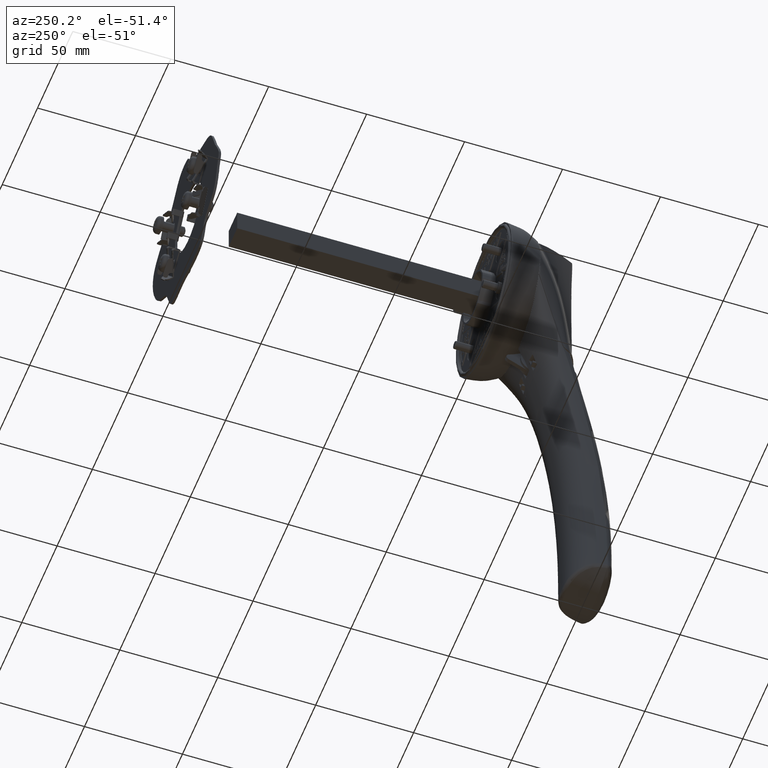
[diagram: clean part render]
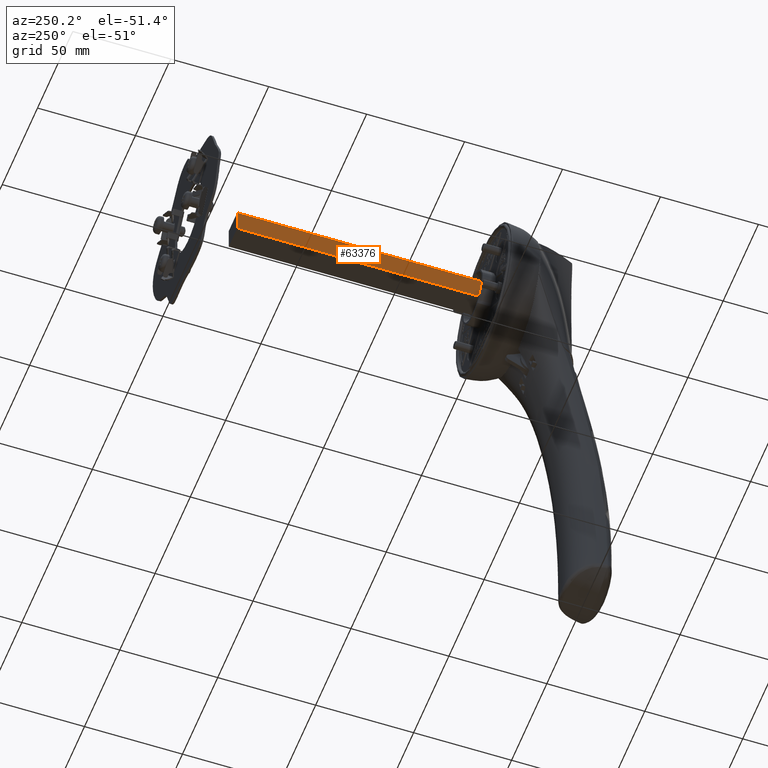
[diagram: same view with one face highlighted and labeled with its STEP entity id]
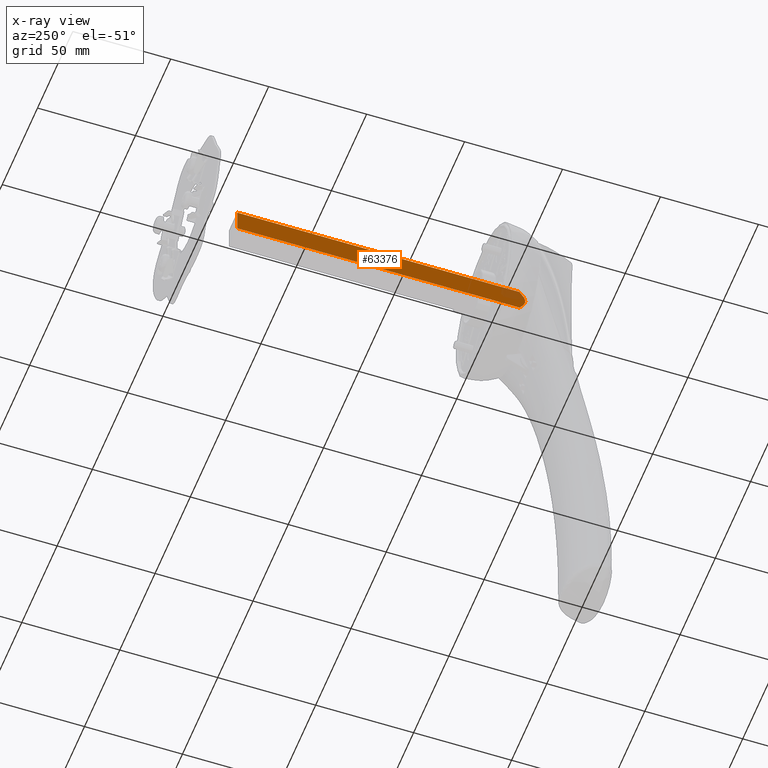
[diagram: x-ray of the same camera — body ghosted, the highlighted face saturated]
A machine part, auxiliary view. The second image highlights one B-rep face of the part: STEP entity #63376.
The next image is the same camera in x-ray: the body ghosted, the highlighted face saturated — about 4% of this face is hidden behind the body in this view.
In plain terms, the highlighted planar face has unit normal (-1, 0, 0).
Its self-contained STEP definition (entity closure, byte-faithful):
#63052=DIRECTION('',(0.E0,1.E0,0.E0));
#63053=VECTOR('',#63052,1.440587730122E2);
#63054=CARTESIAN_POINT('',(-6.E0,-1.585877301216E1,-6.000000000001E0));
#63055=LINE('',#63054,#63053);
#63092=DIRECTION('',(0.E0,1.E0,0.E0));
#63093=VECTOR('',#63092,1.440587730122E2);
#63094=CARTESIAN_POINT('',(-6.E0,-1.585877301216E1,5.999999999999E0));
#63095=LINE('',#63094,#63093);
#63132=DIRECTION('',(0.E0,0.E0,1.E0));
#63133=VECTOR('',#63132,1.2E1);
#63134=CARTESIAN_POINT('',(-6.E0,1.282E2,-6.000000000001E0));
#63135=LINE('',#63134,#63133);
#63185=CARTESIAN_POINT('',(-6.E0,-1.585877301216E1,5.999999999999E0));
#63186=CARTESIAN_POINT('',(-6.E0,-1.618972467242E1,5.607270891114E0));
#63187=CARTESIAN_POINT('',(-6.E0,-1.680270092359E1,4.842681582381E0));
#63188=CARTESIAN_POINT('',(-6.E0,-1.755557959700E1,3.761746399410E0));
#63189=CARTESIAN_POINT('',(-6.E0,-1.815768769003E1,2.699878366037E0));
#63190=CARTESIAN_POINT('',(-6.E0,-1.859997323284E1,1.611419846835E0));
#63191=CARTESIAN_POINT('',(-6.E0,-1.883592059792E1,4.994379806997E-1));
#63192=CARTESIAN_POINT('',(-6.E0,-1.882469778315E1,-5.972648431553E-1));
#63193=CARTESIAN_POINT('',(-6.E0,-1.857186391703E1,-1.695831573198E0));
#63194=CARTESIAN_POINT('',(-6.E0,-1.812909683679E1,-2.756051747788E0));
#63195=CARTESIAN_POINT('',(-6.E0,-1.753175961710E1,-3.797194415667E0));
#63196=CARTESIAN_POINT('',(-6.E0,-1.678621020078E1,-4.863760205693E0));
#63197=CARTESIAN_POINT('',(-6.E0,-1.618357468321E1,-5.614568874700E0));
#63198=CARTESIAN_POINT('',(-6.E0,-1.585877301216E1,-6.000000000001E0));
#63252=CARTESIAN_POINT('',(-6.E0,-1.585877301216E1,-6.000000000001E0));
#63253=CARTESIAN_POINT('',(-6.E0,1.282E2,-6.000000000001E0));
#63254=VERTEX_POINT('',#63252);
#63255=VERTEX_POINT('',#63253);
#63261=CARTESIAN_POINT('',(-6.E0,1.282E2,5.999999999999E0));
#63263=VERTEX_POINT('',#63261);
#63264=CARTESIAN_POINT('',(-6.E0,-1.585877301216E1,5.999999999999E0));
#63265=VERTEX_POINT('',#63264);
#63362=CARTESIAN_POINT('',(-6.E0,7.42E1,5.099999999999E0));
#63363=DIRECTION('',(-1.E0,0.E0,0.E0));
#63364=DIRECTION('',(0.E0,-1.E0,0.E0));
#63365=AXIS2_PLACEMENT_3D('',#63362,#63363,#63364);
#63366=PLANE('',#63365);
#63368=ORIENTED_EDGE('',*,*,#63367,.F.);
#63370=ORIENTED_EDGE('',*,*,#63369,.T.);
#63371=ORIENTED_EDGE('',*,*,#63305,.T.);
#63373=ORIENTED_EDGE('',*,*,#63372,.T.);
#63374=EDGE_LOOP('',(#63368,#63370,#63371,#63373));
#63375=FACE_OUTER_BOUND('',#63374,.F.);
#63376=ADVANCED_FACE('',(#63375),#63366,.T.);
#63199=B_SPLINE_CURVE_WITH_KNOTS('',3,(#63185,#63186,#63187,#63188,#63189,
#63190,#63191,#63192,#63193,#63194,#63195,#63196,#63197,#63198),.UNSPECIFIED.,
.F.,.F.,(4,1,1,1,1,1,1,1,1,1,1,4),(0.E0,9.090909090909E-2,1.818181818182E-1,
2.727272727273E-1,3.636363636364E-1,4.545454545455E-1,5.454545454545E-1,
6.363636363636E-1,7.272727272727E-1,8.181818181818E-1,9.090909090909E-1,1.E0),
.UNSPECIFIED.);
#63305=EDGE_CURVE('',#63254,#63255,#63055,.T.);
#63367=EDGE_CURVE('',#63265,#63263,#63095,.T.);
#63369=EDGE_CURVE('',#63265,#63254,#63199,.T.);
#63372=EDGE_CURVE('',#63255,#63263,#63135,.T.);